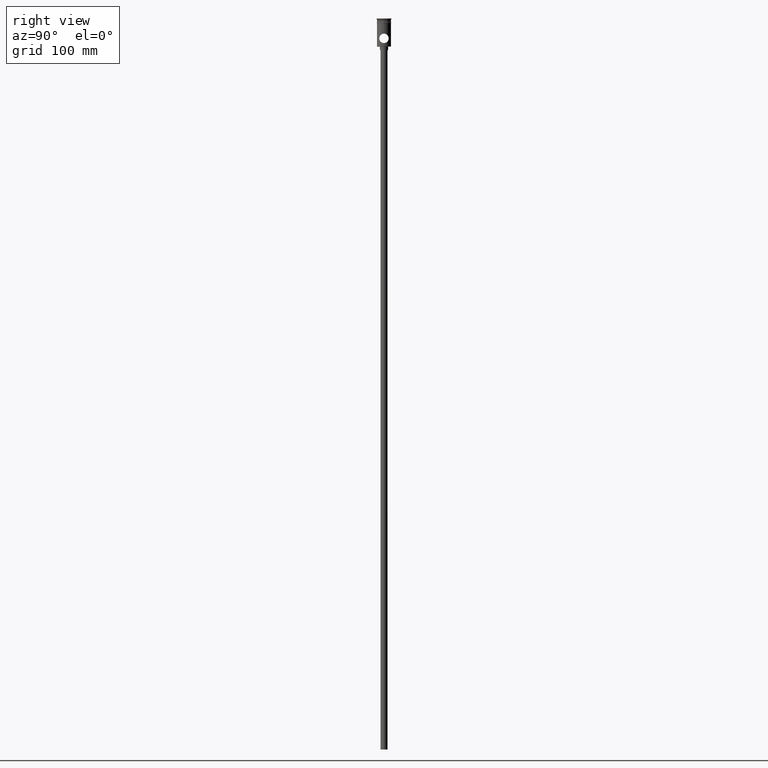
[diagram: clean part render]
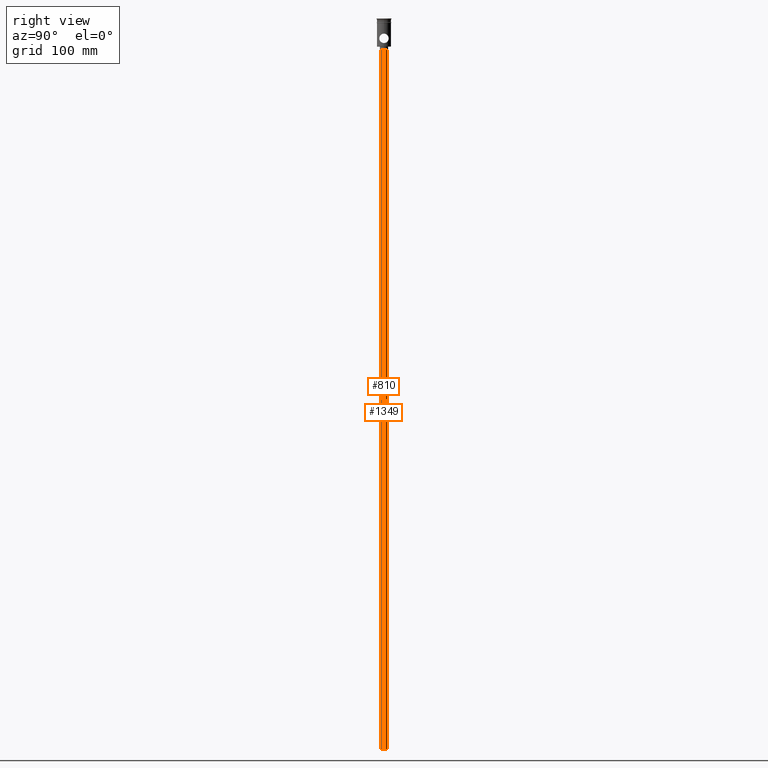
[diagram: same view with one multi-face feature highlighted, each face labeled with its STEP entity id]
A machine part, right view. The highlighted faces form ONE feature: a constant-radius fillet chain: 2 tangent blend faces with common blend radius 3 mm. The faces share edges in the B-rep.
Their STEP definitions:
[1] entity #810 (Cylinder):
#7 = AXIS2_PLACEMENT_3D ( 'NONE', #143, #1416, #30 ) ;
#8 = ORIENTED_EDGE ( 'NONE', *, *, #757, .T. ) ;
#30 = DIRECTION ( 'NONE',  ( -1.000000000000000000, 0.000000000000000000, 0.000000000000000000 ) ) ;
#85 = EDGE_CURVE ( 'NONE', #559, #304, #1285, .T. ) ;
#106 = VERTEX_POINT ( 'NONE', #244 ) ;
#142 = DIRECTION ( 'NONE',  ( -0.000000000000000000, -0.000000000000000000, 1.000000000000000000 ) ) ;
#143 = CARTESIAN_POINT ( 'NONE',  ( 0.000000000000000000, 0.000000000000000000, -27.00000000000000000 ) ) ;
#244 = CARTESIAN_POINT ( 'NONE',  ( -3.000000000000000444, 3.673940397442060361E-16, -624.0000000000000000 ) ) ;
#246 = CARTESIAN_POINT ( 'NONE',  ( 0.000000000000000000, 0.000000000000000000, -624.0000000000000000 ) ) ;
#304 = VERTEX_POINT ( 'NONE', #629 ) ;
#360 = ORIENTED_EDGE ( 'NONE', *, *, #1168, .F. ) ;
#371 = DIRECTION ( 'NONE',  ( -0.000000000000000000, -0.000000000000000000, 1.000000000000000000 ) ) ;
#425 = CARTESIAN_POINT ( 'NONE',  ( -3.000000000000000444, 3.673940397442060361E-16, -27.00000000000000000 ) ) ;
#436 = CIRCLE ( 'NONE', #7, 3.000000000000000444 ) ;
#467 = CARTESIAN_POINT ( 'NONE',  ( 0.000000000000000000, 0.000000000000000000, -624.0000000000000000 ) ) ;
#550 = DIRECTION ( 'NONE',  ( -0.000000000000000000, -0.000000000000000000, 1.000000000000000000 ) ) ;
#559 = VERTEX_POINT ( 'NONE', #1328 ) ;
#561 = DIRECTION ( 'NONE',  ( -1.000000000000000000, 0.000000000000000000, 0.000000000000000000 ) ) ;
#592 = AXIS2_PLACEMENT_3D ( 'NONE', #467, #371, #1385 ) ;
#629 = CARTESIAN_POINT ( 'NONE',  ( 3.000000000000000444, 0.000000000000000000, -27.00000000000000000 ) ) ;
#642 = EDGE_CURVE ( 'NONE', #106, #974, #662, .T. ) ;
#662 = LINE ( 'NONE', #1133, #1380 ) ;
#667 = DIRECTION ( 'NONE',  ( 0.000000000000000000, 0.000000000000000000, -1.000000000000000000 ) ) ;
#727 = VECTOR ( 'NONE', #142, 1000.000000000000000 ) ;
#757 = EDGE_CURVE ( 'NONE', #304, #974, #436, .T. ) ;
#808 = FACE_OUTER_BOUND ( 'NONE', #984, .T. ) ;
#810 = ADVANCED_FACE ( 'NONE', ( #808 ), #1374, .T. ) ;
#878 = CIRCLE ( 'NONE', #1103, 3.000000000000000444 ) ;
#912 = CARTESIAN_POINT ( 'NONE',  ( 3.000000000000000444, 0.000000000000000000, -624.0000000000000000 ) ) ;
#974 = VERTEX_POINT ( 'NONE', #425 ) ;
#984 = EDGE_LOOP ( 'NONE', ( #1389, #360, #1005, #8 ) ) ;
#1005 = ORIENTED_EDGE ( 'NONE', *, *, #85, .T. ) ;
#1103 = AXIS2_PLACEMENT_3D ( 'NONE', #246, #667, #561 ) ;
#1133 = CARTESIAN_POINT ( 'NONE',  ( -3.000000000000000444, 3.673940397442060361E-16, -624.0000000000000000 ) ) ;
#1168 = EDGE_CURVE ( 'NONE', #559, #106, #878, .T. ) ;
#1285 = LINE ( 'NONE', #912, #727 ) ;
#1328 = CARTESIAN_POINT ( 'NONE',  ( 3.000000000000000444, 0.000000000000000000, -624.0000000000000000 ) ) ;
#1374 = CYLINDRICAL_SURFACE ( 'NONE', #592, 3.000000000000000444 ) ;
#1380 = VECTOR ( 'NONE', #550, 1000.000000000000000 ) ;
#1385 = DIRECTION ( 'NONE',  ( 1.000000000000000000, 0.000000000000000000, 0.000000000000000000 ) ) ;
#1389 = ORIENTED_EDGE ( 'NONE', *, *, #642, .F. ) ;
#1416 = DIRECTION ( 'NONE',  ( 0.000000000000000000, 0.000000000000000000, -1.000000000000000000 ) ) ;
[2] entity #1349 (Cylinder):
#14 = DIRECTION ( 'NONE',  ( -1.000000000000000000, 0.000000000000000000, 0.000000000000000000 ) ) ;
#50 = AXIS2_PLACEMENT_3D ( 'NONE', #487, #1341, #994 ) ;
#85 = EDGE_CURVE ( 'NONE', #559, #304, #1285, .T. ) ;
#106 = VERTEX_POINT ( 'NONE', #244 ) ;
#123 = EDGE_CURVE ( 'NONE', #106, #559, #1122, .T. ) ;
#128 = DIRECTION ( 'NONE',  ( 0.000000000000000000, 0.000000000000000000, -1.000000000000000000 ) ) ;
#142 = DIRECTION ( 'NONE',  ( -0.000000000000000000, -0.000000000000000000, 1.000000000000000000 ) ) ;
#214 = CYLINDRICAL_SURFACE ( 'NONE', #50, 3.000000000000000444 ) ;
#233 = DIRECTION ( 'NONE',  ( 0.000000000000000000, 0.000000000000000000, -1.000000000000000000 ) ) ;
#244 = CARTESIAN_POINT ( 'NONE',  ( -3.000000000000000444, 3.673940397442060361E-16, -624.0000000000000000 ) ) ;
#254 = CARTESIAN_POINT ( 'NONE',  ( 0.000000000000000000, 0.000000000000000000, -624.0000000000000000 ) ) ;
#263 = DIRECTION ( 'NONE',  ( -1.000000000000000000, 0.000000000000000000, 0.000000000000000000 ) ) ;
#304 = VERTEX_POINT ( 'NONE', #629 ) ;
#397 = ORIENTED_EDGE ( 'NONE', *, *, #85, .F. ) ;
#425 = CARTESIAN_POINT ( 'NONE',  ( -3.000000000000000444, 3.673940397442060361E-16, -27.00000000000000000 ) ) ;
#487 = CARTESIAN_POINT ( 'NONE',  ( 0.000000000000000000, 0.000000000000000000, -624.0000000000000000 ) ) ;
#523 = AXIS2_PLACEMENT_3D ( 'NONE', #1352, #233, #14 ) ;
#550 = DIRECTION ( 'NONE',  ( -0.000000000000000000, -0.000000000000000000, 1.000000000000000000 ) ) ;
#559 = VERTEX_POINT ( 'NONE', #1328 ) ;
#588 = EDGE_LOOP ( 'NONE', ( #888, #835, #1260, #397 ) ) ;
#629 = CARTESIAN_POINT ( 'NONE',  ( 3.000000000000000444, 0.000000000000000000, -27.00000000000000000 ) ) ;
#642 = EDGE_CURVE ( 'NONE', #106, #974, #662, .T. ) ;
#662 = LINE ( 'NONE', #1133, #1380 ) ;
#727 = VECTOR ( 'NONE', #142, 1000.000000000000000 ) ;
#835 = ORIENTED_EDGE ( 'NONE', *, *, #642, .T. ) ;
#888 = ORIENTED_EDGE ( 'NONE', *, *, #123, .F. ) ;
#912 = CARTESIAN_POINT ( 'NONE',  ( 3.000000000000000444, 0.000000000000000000, -624.0000000000000000 ) ) ;
#919 = AXIS2_PLACEMENT_3D ( 'NONE', #254, #128, #263 ) ;
#974 = VERTEX_POINT ( 'NONE', #425 ) ;
#994 = DIRECTION ( 'NONE',  ( 1.000000000000000000, 0.000000000000000000, 0.000000000000000000 ) ) ;
#1029 = CIRCLE ( 'NONE', #523, 3.000000000000000444 ) ;
#1122 = CIRCLE ( 'NONE', #919, 3.000000000000000444 ) ;
#1133 = CARTESIAN_POINT ( 'NONE',  ( -3.000000000000000444, 3.673940397442060361E-16, -624.0000000000000000 ) ) ;
#1223 = EDGE_CURVE ( 'NONE', #974, #304, #1029, .T. ) ;
#1260 = ORIENTED_EDGE ( 'NONE', *, *, #1223, .T. ) ;
#1285 = LINE ( 'NONE', #912, #727 ) ;
#1328 = CARTESIAN_POINT ( 'NONE',  ( 3.000000000000000444, 0.000000000000000000, -624.0000000000000000 ) ) ;
#1340 = FACE_OUTER_BOUND ( 'NONE', #588, .T. ) ;
#1341 = DIRECTION ( 'NONE',  ( -0.000000000000000000, -0.000000000000000000, 1.000000000000000000 ) ) ;
#1349 = ADVANCED_FACE ( 'NONE', ( #1340 ), #214, .T. ) ;
#1352 = CARTESIAN_POINT ( 'NONE',  ( 0.000000000000000000, 0.000000000000000000, -27.00000000000000000 ) ) ;
#1380 = VECTOR ( 'NONE', #550, 1000.000000000000000 ) ;